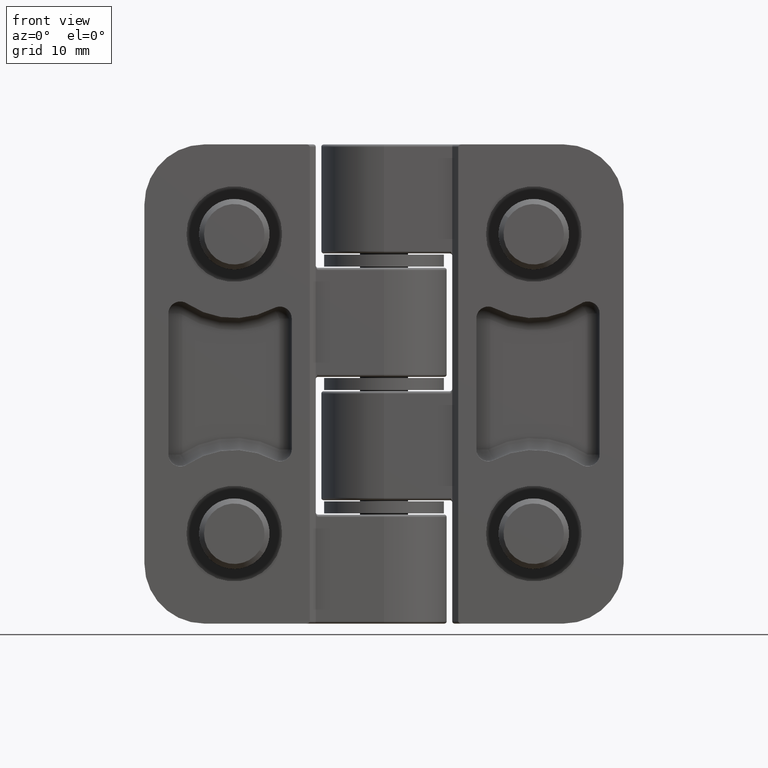
[diagram: clean part render]
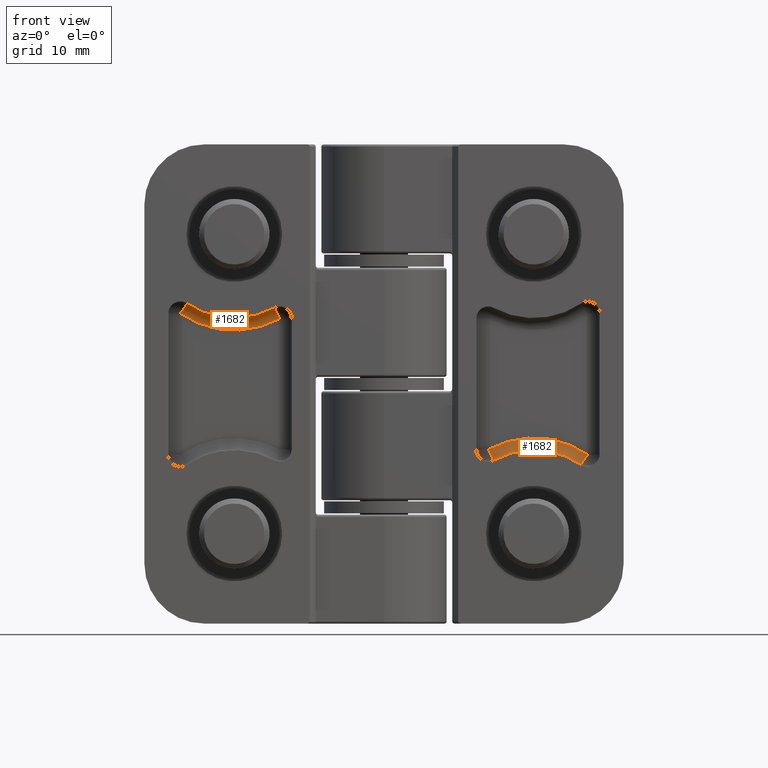
[diagram: same view with one multi-face feature highlighted, each face labeled with its STEP entity id]
A machine part, front view. The highlighted faces form ONE feature: a constant-radius fillet chain: 2 tangent blend faces with common blend radius 1 mm. The faces share edges in the B-rep.
Their STEP definitions:
[1] entity #1682 (Torus):
#250=TOROIDAL_SURFACE('',#1857,8.,1.);
#339=FACE_OUTER_BOUND('',#447,.T.);
#447=EDGE_LOOP('',(#1433,#1434,#1435,#1436));
#572=CIRCLE('',#1858,1.);
#573=CIRCLE('',#1859,8.);
#574=CIRCLE('',#1860,1.);
#575=CIRCLE('',#1861,7.);
#814=VERTEX_POINT('',#23055);
#815=VERTEX_POINT('',#23056);
#816=VERTEX_POINT('',#23058);
#817=VERTEX_POINT('',#23060);
#1037=EDGE_CURVE('',#814,#815,#572,.T.);
#1038=EDGE_CURVE('',#815,#816,#573,.T.);
#1039=EDGE_CURVE('',#816,#817,#574,.T.);
#1040=EDGE_CURVE('',#817,#814,#575,.T.);
#1433=ORIENTED_EDGE('',*,*,#1037,.T.);
#1434=ORIENTED_EDGE('',*,*,#1038,.T.);
#1435=ORIENTED_EDGE('',*,*,#1039,.T.);
#1436=ORIENTED_EDGE('',*,*,#1040,.T.);
#1682=ADVANCED_FACE('',(#339),#250,.F.);
#1857=AXIS2_PLACEMENT_3D('',#23054,#2255,#2256);
#1858=AXIS2_PLACEMENT_3D('',#23057,#2257,#2258);
#1859=AXIS2_PLACEMENT_3D('',#23059,#2259,#2260);
#1860=AXIS2_PLACEMENT_3D('',#23061,#2261,#2262);
#1861=AXIS2_PLACEMENT_3D('',#23062,#2263,#2264);
#2255=DIRECTION('center_axis',(2.22044604925031E-16,-1.,0.));
#2256=DIRECTION('ref_axis',(0.0511987979919293,0.,0.998688481501705));
#2257=DIRECTION('center_axis',(0.826797284707684,0.,-0.562500000000001));
#2258=DIRECTION('ref_axis',(-0.562500000000001,0.,-0.826797284707684));
#2259=DIRECTION('center_axis',(2.22044604925031E-16,-1.,0.));
#2260=DIRECTION('ref_axis',(0.0511987979919293,1.13684168727544E-17,0.998688481501705));
#2261=DIRECTION('center_axis',(-0.879985795339902,0.,-0.475));
#2262=DIRECTION('ref_axis',(0.,1.,0.));
#2263=DIRECTION('center_axis',(-2.22044604925031E-16,1.,0.));
#2264=DIRECTION('ref_axis',(0.0511987979919293,1.13684168727544E-17,0.998688481501705));
#23054=CARTESIAN_POINT('Origin',(12.5,-3.75,-12.5));
#23055=CARTESIAN_POINT('',(16.4375,-3.75,-6.71241900704621));
#23056=CARTESIAN_POINT('',(17.,-2.75,-5.88562172233853));
#23057=CARTESIAN_POINT('Origin',(17.,-3.75,-5.88562172233852));
#23058=CARTESIAN_POINT('',(8.7,-2.75,-5.46011363728078));
#23059=CARTESIAN_POINT('Origin',(12.5,-2.75,-12.5));
#23060=CARTESIAN_POINT('',(9.175,-3.75,-6.34009943262068));
#23061=CARTESIAN_POINT('Origin',(8.7,-3.75,-5.46011363728078));
#23062=CARTESIAN_POINT('Origin',(12.5,-3.75,-12.5));
[2] entity #1682 (Torus):
#250=TOROIDAL_SURFACE('',#1857,8.,1.);
#339=FACE_OUTER_BOUND('',#447,.T.);
#447=EDGE_LOOP('',(#1433,#1434,#1435,#1436));
#572=CIRCLE('',#1858,1.);
#573=CIRCLE('',#1859,8.);
#574=CIRCLE('',#1860,1.);
#575=CIRCLE('',#1861,7.);
#814=VERTEX_POINT('',#23055);
#815=VERTEX_POINT('',#23056);
#816=VERTEX_POINT('',#23058);
#817=VERTEX_POINT('',#23060);
#1037=EDGE_CURVE('',#814,#815,#572,.T.);
#1038=EDGE_CURVE('',#815,#816,#573,.T.);
#1039=EDGE_CURVE('',#816,#817,#574,.T.);
#1040=EDGE_CURVE('',#817,#814,#575,.T.);
#1433=ORIENTED_EDGE('',*,*,#1037,.T.);
#1434=ORIENTED_EDGE('',*,*,#1038,.T.);
#1435=ORIENTED_EDGE('',*,*,#1039,.T.);
#1436=ORIENTED_EDGE('',*,*,#1040,.T.);
#1682=ADVANCED_FACE('',(#339),#250,.F.);
#1857=AXIS2_PLACEMENT_3D('',#23054,#2255,#2256);
#1858=AXIS2_PLACEMENT_3D('',#23057,#2257,#2258);
#1859=AXIS2_PLACEMENT_3D('',#23059,#2259,#2260);
#1860=AXIS2_PLACEMENT_3D('',#23061,#2261,#2262);
#1861=AXIS2_PLACEMENT_3D('',#23062,#2263,#2264);
#2255=DIRECTION('center_axis',(2.22044604925031E-16,-1.,0.));
#2256=DIRECTION('ref_axis',(0.0511987979919293,0.,0.998688481501705));
#2257=DIRECTION('center_axis',(0.826797284707684,0.,-0.562500000000001));
#2258=DIRECTION('ref_axis',(-0.562500000000001,0.,-0.826797284707684));
#2259=DIRECTION('center_axis',(2.22044604925031E-16,-1.,0.));
#2260=DIRECTION('ref_axis',(0.0511987979919293,1.13684168727544E-17,0.998688481501705));
#2261=DIRECTION('center_axis',(-0.879985795339902,0.,-0.475));
#2262=DIRECTION('ref_axis',(0.,1.,0.));
#2263=DIRECTION('center_axis',(-2.22044604925031E-16,1.,0.));
#2264=DIRECTION('ref_axis',(0.0511987979919293,1.13684168727544E-17,0.998688481501705));
#23054=CARTESIAN_POINT('Origin',(12.5,-3.75,-12.5));
#23055=CARTESIAN_POINT('',(16.4375,-3.75,-6.71241900704621));
#23056=CARTESIAN_POINT('',(17.,-2.75,-5.88562172233853));
#23057=CARTESIAN_POINT('Origin',(17.,-3.75,-5.88562172233852));
#23058=CARTESIAN_POINT('',(8.7,-2.75,-5.46011363728078));
#23059=CARTESIAN_POINT('Origin',(12.5,-2.75,-12.5));
#23060=CARTESIAN_POINT('',(9.175,-3.75,-6.34009943262068));
#23061=CARTESIAN_POINT('Origin',(8.7,-3.75,-5.46011363728078));
#23062=CARTESIAN_POINT('Origin',(12.5,-3.75,-12.5));